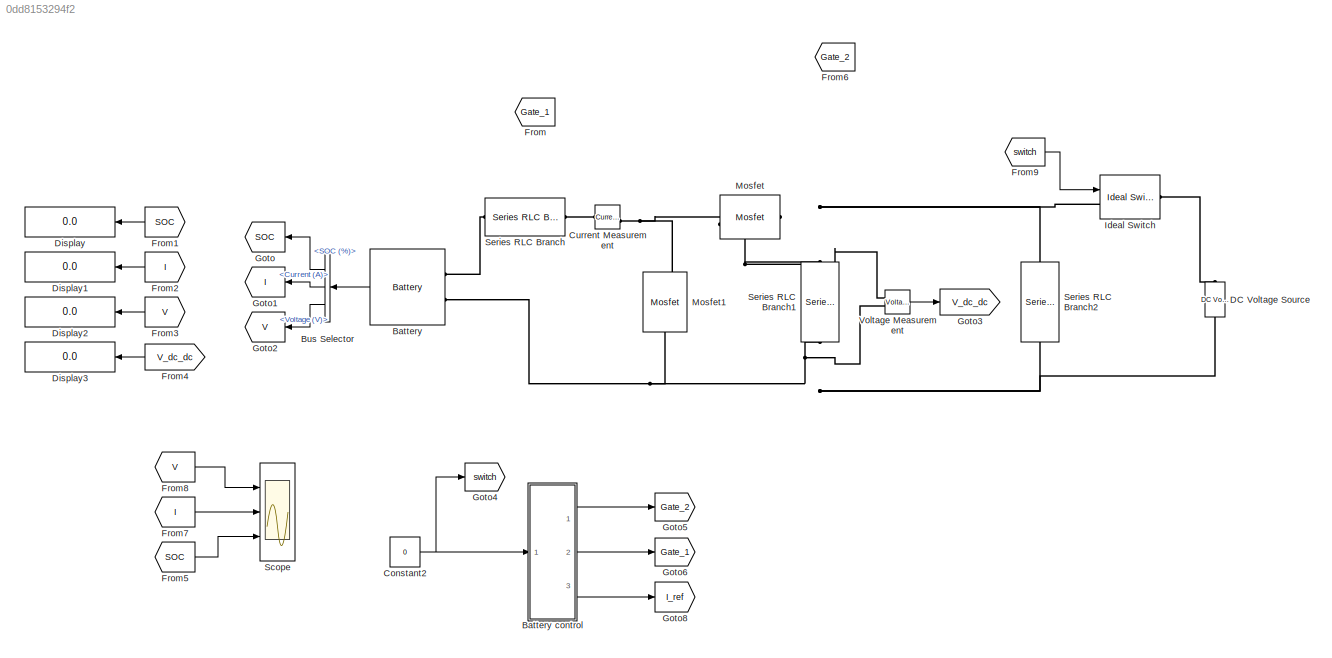
MODEL slx_0dd8153294f2
KIND model
CONFIG AbsTol = auto
CONFIG EnableMultiTasking = off
CONFIG FixedStep = auto
CONFIG MaxStep = auto
CONFIG MinStep = auto
CONFIG RelTol = 1e-3
CONFIG SampleTimeConstraint = Unconstrained
CONFIG Solver = VariableStepAuto
CONFIG SolverName = VariableStepAuto
CONFIG StartTime = 0.0
CONFIG StopTime = 10.0
BLOCK [Reference] Battery  REF=electricdrivelib/Extra Sources/Battery
  Ports = [0, 1, 0, 0, 0, 2]
  SourceBlock = electricdrivelib/Extra Sources/Battery
  SourceProductBaseCode = PS
  SourceType = Battery
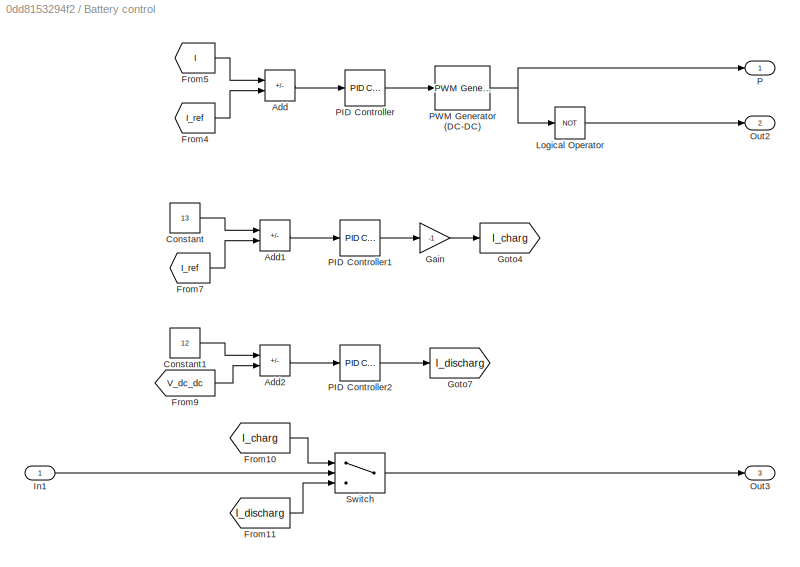
BLOCK [SubSystem] Battery control
  Ports = [1, 3]
  RequestExecContextInheritance = off
BLOCK [Sum] Battery control/Add
  IconShape = rectangular
  Inputs = +-
  Ports = [2, 1]
BLOCK [Sum] Battery control/Add1
  IconShape = rectangular
  Inputs = +-
  Ports = [2, 1]
BLOCK [Sum] Battery control/Add2
  IconShape = rectangular
  Inputs = +-
  Ports = [2, 1]
BLOCK [Constant] Battery control/Constant
  Value = 13
BLOCK [Constant] Battery control/Constant1
  Value = 12
BLOCK [From] Battery control/From10
  GotoTag = I_charg
BLOCK [From] Battery control/From11
  GotoTag = I_discharg
BLOCK [From] Battery control/From4
  GotoTag = I_ref
BLOCK [From] Battery control/From5
  GotoTag = I
  NameLocation = top
BLOCK [From] Battery control/From7
  GotoTag = I_ref
BLOCK [From] Battery control/From9
  GotoTag = V_dc_dc
BLOCK [Gain] Battery control/Gain
  Gain = -1
BLOCK [Goto] Battery control/Goto4
  GotoTag = I_charg
BLOCK [Goto] Battery control/Goto7
  GotoTag = I_discharg
BLOCK [Inport] Battery control/In1
BLOCK [Logic] Battery control/Logical Operator
  AllPortsSameDT = off
  Operator = NOT
  OutDataTypeStr = boolean
  Ports = [1, 1]
BLOCK [Outport] Battery control/Out2
  Port = 2
BLOCK [Outport] Battery control/Out3
  Port = 3
BLOCK [Outport] Battery control/P
BLOCK [Reference] Battery control/PID Controller  REF=simulink/Continuous/PID Controller
  Ports = [1, 1]
  SourceBlock = simulink/Continuous/PID Controller
  SourceProductBaseCode = SL
  SourceType = PID 1dof
BLOCK [Reference] Battery control/PID Controller1  REF=simulink/Continuous/PID Controller
  Ports = [1, 1]
  SourceBlock = simulink/Continuous/PID Controller
  SourceProductBaseCode = SL
  SourceType = PID 1dof
BLOCK [Reference] Battery control/PID Controller2  REF=simulink/Continuous/PID Controller
  Ports = [1, 1]
  SourceBlock = simulink/Continuous/PID Controller
  SourceProductBaseCode = SL
  SourceType = PID 1dof
BLOCK [Reference] Battery control/PWM Generator (DC-DC)  REF=powerlib_meascontrol/Pulse & Signal
Generators/PWM Generator
(DC-DC)
  Ports = [1, 1]
  SourceBlock = powerlib_meascontrol/Pulse & Signal\nGenerators/PWM Generator\n(DC-DC)
  SourceProductBaseCode = PS
  SourceType = PWM Generator (DC-DC)
BLOCK [Switch] Battery control/Switch
  Criteria = u2 > Threshold
  InputSameDT = off
  SaturateOnIntegerOverflow = off
BLOCK [BusSelector] Bus Selector
  NameLocation = top
  OutputSignals = SOC (%),Current (A),Voltage (V)
  Ports = [1, 3]
BLOCK [Constant] Constant2
  Value = 0
BLOCK [Reference] Current Measurement  REF=powerlib/Measurements/Current Measurement
  Ports = [0, 1, 0, 0, 0, 1, 1]
  SourceBlock = powerlib/Measurements/Current Measurement
  SourceProductBaseCode = PS
  SourceType = Current Measurement
  UserDataPersistent = on
BLOCK [Reference] DC Voltage Source  REF=powerlib/Electrical
Sources/DC Voltage Source
  NameLocation = right
  Ports = [0, 0, 0, 0, 0, 1, 1]
  SourceBlock = powerlib/Electrical\nSources/DC Voltage Source
  SourceProductBaseCode = PS
  SourceType = DC Voltage Source
BLOCK [Display] Display
  Decimation = 1
  NameLocation = top
  Ports = [1]
BLOCK [Display] Display1
  Decimation = 1
  NameLocation = top
  Ports = [1]
BLOCK [Display] Display2
  Decimation = 1
  NameLocation = top
  Ports = [1]
BLOCK [Display] Display3
  Decimation = 1
  NameLocation = top
  Ports = [1]
BLOCK [From] From
  GotoTag = Gate_1
BLOCK [From] From1
  GotoTag = SOC
BLOCK [From] From2
  GotoTag = I
BLOCK [From] From3
  GotoTag = V
BLOCK [From] From4
  GotoTag = V_dc_dc
  NameLocation = top
BLOCK [From] From5
  GotoTag = SOC
  NameLocation = top
BLOCK [From] From6
  GotoTag = Gate_2
BLOCK [From] From7
  GotoTag = I
  NameLocation = top
BLOCK [From] From8
  GotoTag = V
  NameLocation = top
BLOCK [From] From9
  GotoTag = switch
BLOCK [Goto] Goto
  GotoTag = SOC
  NameLocation = top
BLOCK [Goto] Goto1
  GotoTag = I
  NameLocation = top
BLOCK [Goto] Goto2
  GotoTag = V
  NameLocation = top
BLOCK [Goto] Goto3
  GotoTag = V_dc_dc
BLOCK [Goto] Goto4
  GotoTag = switch
BLOCK [Goto] Goto5
  GotoTag = Gate_2
BLOCK [Goto] Goto6
  GotoTag = Gate_1
BLOCK [Goto] Goto8
  GotoTag = I_ref
BLOCK [Reference] Ideal Switch  REF=powerlib/Power
Electronics/Ideal Switch
  Ports = [1, 0, 0, 0, 0, 1, 1]
  SourceBlock = powerlib/Power\nElectronics/Ideal Switch
  SourceProductBaseCode = PS
  SourceType = Ideal Switch
BLOCK [Reference] Mosfet  REF=powerlib/Power
Electronics/Mosfet
  NameLocation = top
  Ports = [1, 0, 0, 0, 0, 1, 1]
  SourceBlock = powerlib/Power\nElectronics/Mosfet
  SourceProductBaseCode = PS
  SourceType = Mosfet
BLOCK [Reference] Mosfet1  REF=powerlib/Power
Electronics/Mosfet
  NameLocation = left
  Ports = [1, 0, 0, 0, 0, 1, 1]
  SourceBlock = powerlib/Power\nElectronics/Mosfet
  SourceProductBaseCode = PS
  SourceType = Mosfet
BLOCK [Scope] Scope
  Floating = off
  NumInputPorts = 3
  Ports = [3]
  ScopeSpecificationString = Simulink.scopes.TimeScopeBlockCfg('CurrentConfiguration', extmgr.ConfigurationSet(extmgr.Configuration('Core','General UI',true),extmgr.Configuration('Core','Source UI',true),extmgr.Configuration('Sources','WiredSimulink',true),extmgr.Configuration('Visuals','Time Domain',true,'SerializedDisplays',{struct('MinYLimReal','-10','MaxYLimReal','10','YLabelReal','','MinYLimMag','0','MaxYLimMag','10','Le...<+2822ch>
BLOCK [Reference] Series RLC Branch  REF=powerlib/Elements/Series RLC Branch
  Ports = [0, 0, 0, 0, 0, 1, 1]
  SourceBlock = powerlib/Elements/Series RLC Branch
  SourceProductBaseCode = PS
  SourceType = Series RLC Branch
BLOCK [Reference] Series RLC Branch1  REF=powerlib/Elements/Series RLC Branch
  NameLocation = left
  Ports = [0, 0, 0, 0, 0, 1, 1]
  SourceBlock = powerlib/Elements/Series RLC Branch
  SourceProductBaseCode = PS
  SourceType = Series RLC Branch
BLOCK [Reference] Series RLC Branch2  REF=powerlib/Elements/Series RLC Branch
  NameLocation = left
  Ports = [0, 0, 0, 0, 0, 1, 1]
  SourceBlock = powerlib/Elements/Series RLC Branch
  SourceProductBaseCode = PS
  SourceType = Series RLC Branch
BLOCK [Reference] Voltage Measurement  REF=powerlib/Measurements/Voltage Measurement
  Ports = [0, 1, 0, 0, 0, 2]
  SourceBlock = powerlib/Measurements/Voltage Measurement
  SourceProductBaseCode = PS
  SourceType = Voltage Measurement
  UserDataPersistent = on
LINE Battery control/Add1:1 -> Battery control/PID Controller1:1
LINE Battery control/Add2:1 -> Battery control/PID Controller2:1
LINE Battery control/Add:1 -> Battery control/PID Controller:1
LINE Battery control/Constant1:1 -> Battery control/Add2:1
LINE Battery control/Constant:1 -> Battery control/Add1:1
LINE Battery control/From10:1 -> Battery control/Switch:1
LINE Battery control/From11:1 -> Battery control/Switch:3
LINE Battery control/From4:1 -> Battery control/Add:2
LINE Battery control/From5:1 -> Battery control/Add:1
LINE Battery control/From7:1 -> Battery control/Add1:2
LINE Battery control/From9:1 -> Battery control/Add2:2
LINE Battery control/Gain:1 -> Battery control/Goto4:1
LINE Battery control/In1:1 -> Battery control/Switch:2
LINE Battery control/Logical Operator:1 -> Battery control/Out2:1
LINE Battery control/PID Controller1:1 -> Battery control/Gain:1
LINE Battery control/PID Controller2:1 -> Battery control/Goto7:1
LINE Battery control/PID Controller:1 -> Battery control/PWM Generator (DC-DC):1
NET Battery control/PWM Generator (DC-DC):1 -> Battery control/Logical Operator:1, Battery control/P:1
LINE Battery control/Switch:1 -> Battery control/Out3:1
LINE Battery control:1 -> Goto5:1
LINE Battery control:2 -> Goto6:1
LINE Battery control:3 -> Goto8:1
LINE Battery:1 -> Bus Selector:1
LINE Bus Selector:1 -> Goto:1
LINE Bus Selector:2 -> Goto1:1
LINE Bus Selector:3 -> Goto2:1
NET Constant2:1 -> Battery control:1, Goto4:1
LINE From1:1 -> Display:1
LINE From2:1 -> Display1:1
LINE From3:1 -> Display2:1
LINE From4:1 -> Display3:1
LINE From5:1 -> Scope:3
LINE From7:1 -> Scope:2
LINE From8:1 -> Scope:1
LINE From9:1 -> Ideal Switch:1
LINE Voltage Measurement:1 -> Goto3:1
PLINE Battery:LConn1 -- Series RLC Branch:LConn1
PNET net1: Battery:LConn2 -- DC Voltage Source:LConn1 -- Mosfet1:RConn1 -- Series RLC Branch1:RConn1 -- Series RLC Branch2:RConn1 -- Voltage Measurement:LConn2
PLINE Current Measurement:LConn1 -- Series RLC Branch:RConn1
PNET net2: Current Measurement:RConn1 -- Mosfet1:LConn1 -- Mosfet:RConn1
PLINE DC Voltage Source:RConn1 -- Ideal Switch:RConn1
PNET net3: Ideal Switch:LConn1 -- Mosfet:LConn1 -- Series RLC Branch1:LConn1 -- Series RLC Branch2:LConn1 -- Voltage Measurement:LConn1
note: NET lines group one-source signal fan-out (src -> all destinations, sorted); 1:1 wires keep LINE; PNET lines group multi-terminal physical nets as a canonical sorted terminal list (undirected conserving connections); 2-terminal nets keep the pairwise PLINE form
